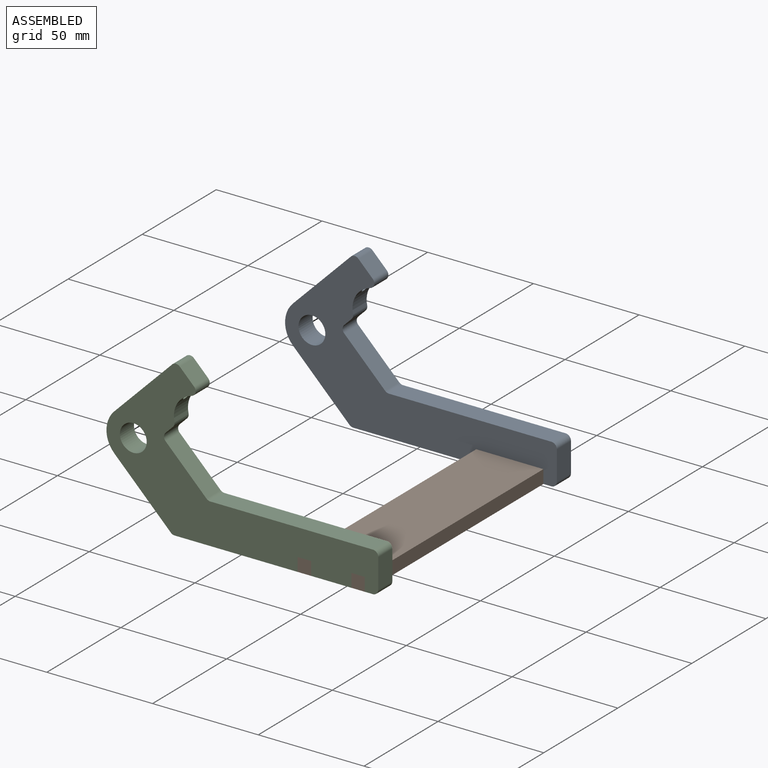
[diagram: assembled view]
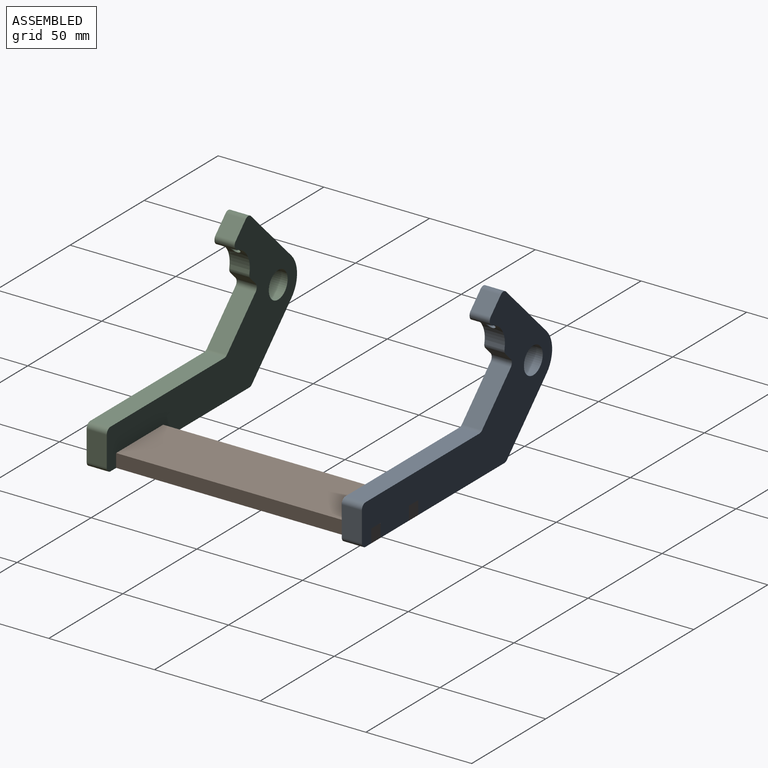
[diagram: assembled view, second angle]
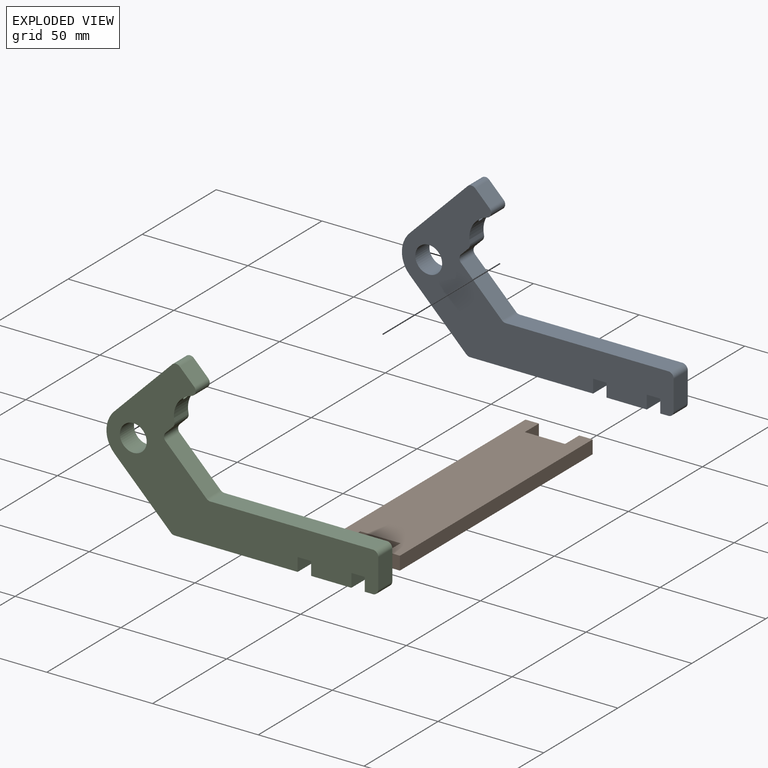
[diagram: exploded view]
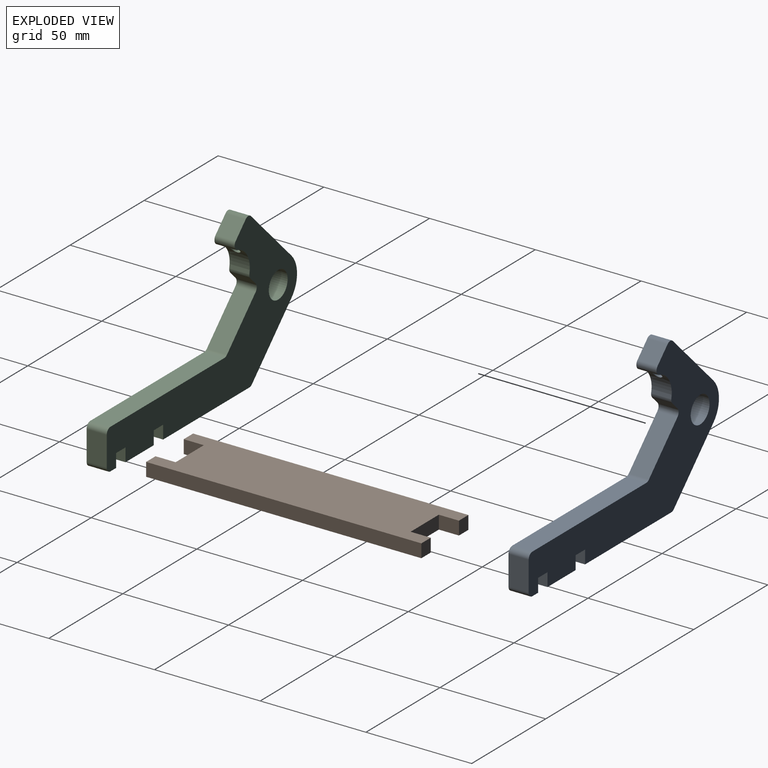
[diagram: exploded view, second angle]
ASSEMBLY  parts=3 mates=2
PART A: 30 faces, bbox 128.5x9.5x73.6 mm
  f0: plane 9.53x6.35mm, normal (1,0,0), area 60.5mm2, adj f1,f18,f19,f20
  f1: plane 9.53x6.35mm, normal (0,0,-1), area 60.5mm2, adj f0,f2,f19,f20
  f2: plane 9.53x6.35mm, normal (-1,0,0), area 60.5mm2, adj f1,f3,f19,f20
  f3: plane 9.53x3.81mm, normal (0,0,-1), area 36.3mm2, adj f2,f19,f20,f24
  f4: plane 13.97x9.53mm, normal (1,0,0), area 133.1mm2, adj f19,f20,f24,f25
  f5: plane 76.87x9.53mm, normal (0,0,1), area 732.2mm2, adj f19,f20,f25,f26
  f6: plane 19.37x19.37mm, normal (0.71,0,0.71), area 260.9mm2, adj f19,f20,f26,f27
  f7: plane 9.53x3.52mm, normal (0.71,0,-0.71), area 47.4mm2, adj f19,f20,f22,f27
  f8: cylinder r=11.11mm len=13.21mm, axis (0,-1,0), area 145.4mm2, adj f19,f20,f21,f22,f23
  f9: plane 9.53x6.75mm, normal (0.71,0,0.71), area 90.9mm2, adj f19,f20,f23,f28
  f10: plane 27.39x27.39mm, normal (-0.71,0,0.71), area 351.1mm2, adj f11,f19,f20,f21,f28
  f11: cylinder r=12.7mm len=17.96mm, axis (0,-1,0), area 190mm2, adj f10,f12,f19,f20
  f12: plane 26.74x26.74mm, normal (-0.71,0,-0.71), area 360.2mm2, adj f11,f19,f20,f29
  f13: plane 58.18x9.53mm, normal (0,0,-1), area 554.2mm2, adj f14,f19,f20,f29
  f14: plane 9.53x6.35mm, normal (1,0,0), area 60.5mm2, adj f13,f15,f19,f20
  f15: plane 9.53x6.35mm, normal (0,0,-1), area 60.5mm2, adj f14,f16,f19,f20
  f16: plane 9.53x6.35mm, normal (-1,0,0), area 60.5mm2, adj f15,f18,f19,f20
  f17: cylinder r=6.35mm len=12.7mm, axis (0,-1,0), area 380mm2, adj f19,f20
  f18: plane 19.05x9.53mm, normal (0,0,-1), area 181.5mm2, adj f0,f16,f19,f20
  f19: plane 128.54x73.58mm, normal (0,1,0), area 3185.7mm2, adj f0,f1,f2,f3,f4,f5,f6,f7
  f20: plane 128.54x73.58mm, normal (0,-1,0), area 3185.7mm2, adj f0,f1,f2,f3,f4,f5,f6,f7
  f21: cylinder r=2.38mm len=12.53mm, axis (-0.71,0,0.71), area 191.9mm2, adj f8,f10
  f22: cylinder r=2.54mm len=9.53mm, axis (0,-1,0), area 24.3mm2, adj f7,f8,f19,f20
  f23: cylinder r=2.54mm len=9.53mm, axis (0,-1,0), area 51mm2, adj f8,f9,f19,f20
  f24: cylinder r=2.54mm len=9.53mm, axis (0,-1,0), area 38mm2, adj f3,f4,f19,f20
  f25: cylinder r=2.54mm len=9.53mm, axis (0,1,0), area 38mm2, adj f4,f5,f19,f20
  f26: cylinder r=2.54mm len=9.53mm, axis (0,-1,0), area 19mm2, adj f5,f6,f19,f20
  f27: cylinder r=2.54mm len=9.53mm, axis (0,-1,0), area 38mm2, adj f6,f7,f19,f20
  f28: cylinder r=2.54mm len=9.53mm, axis (0,-1,0), area 38mm2, adj f9,f10,f19,f20
  f29: cylinder r=2.54mm len=9.53mm, axis (0,1,0), area 19mm2, adj f12,f13,f19,f20
PART B: 14 faces, bbox 130.2x31.8x6.4 mm
  f0: plane 9.53x6.35mm, normal (0,-1,0), area 60.5mm2, adj f1,f11,f12,f13
  f1: plane 6.35x6.35mm, normal (1,0,0), area 40.3mm2, adj f0,f2,f12,f13
  f2: plane 130.18x6.35mm, normal (0,1,0), area 826.6mm2, adj f1,f3,f12,f13
  f3: plane 6.35x6.35mm, normal (-1,0,0), area 40.3mm2, adj f2,f4,f12,f13
  f4: plane 9.53x6.35mm, normal (0,-1,0), area 60.5mm2, adj f3,f5,f12,f13
  f5: plane 19.05x6.35mm, normal (-1,0,0), area 121mm2, adj f4,f6,f12,f13
  f6: plane 9.53x6.35mm, normal (0,1,0), area 60.5mm2, adj f5,f7,f12,f13
  f7: plane 6.35x6.35mm, normal (-1,0,0), area 40.3mm2, adj f6,f8,f12,f13
  f8: plane 130.18x6.35mm, normal (0,-1,0), area 826.6mm2, adj f7,f9,f12,f13
  f9: plane 6.35x6.35mm, normal (1,0,0), area 40.3mm2, adj f8,f10,f12,f13
  f10: plane 9.53x6.35mm, normal (0,1,0), area 60.5mm2, adj f9,f11,f12,f13
  f11: plane 19.05x6.35mm, normal (1,0,0), area 121mm2, adj f0,f10,f12,f13
  f12: plane 130.18x31.75mm, normal (0,0,1), area 3770.2mm2, adj f0,f1,f2,f3,f4,f5,f6,f7
  f13: plane 130.18x31.75mm, normal (0,0,-1), area 3770.2mm2, adj f0,f1,f2,f3,f4,f5,f6,f7
PART C: same geometry as A
PLACE A t=(-47.67,46.53,15.34)mm
PLACE B rot(axis=(0,0,-1),90deg) t=(30.49,56.06,-22.12)mm
PLACE C t=(-47.67,-74.12,15.34)mm
MATE fastened A.f19 <-> B.f7  axis (0,1,0) through (30.49,56.06,-15.77)mm
MATE fastened B.f9 <-> C.f20  axis (0,-1,0) through (36.84,-74.12,-15.77)mm
